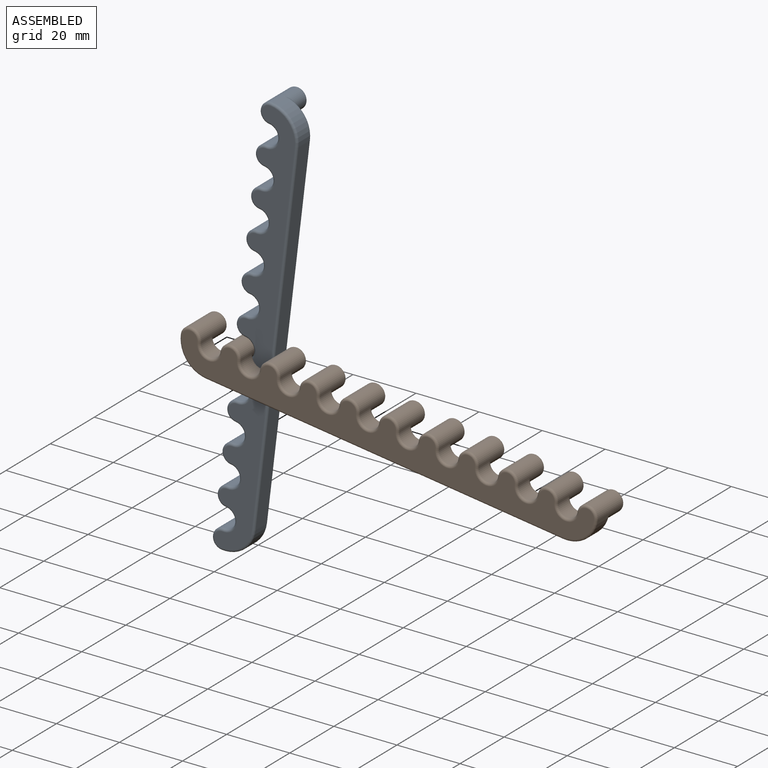
[diagram: assembled view]
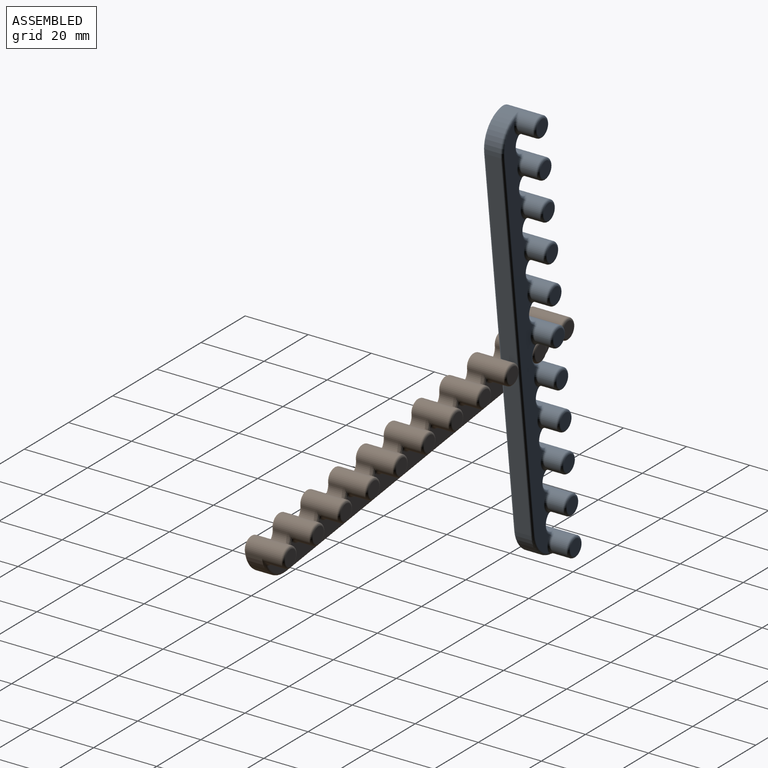
[diagram: assembled view, second angle]
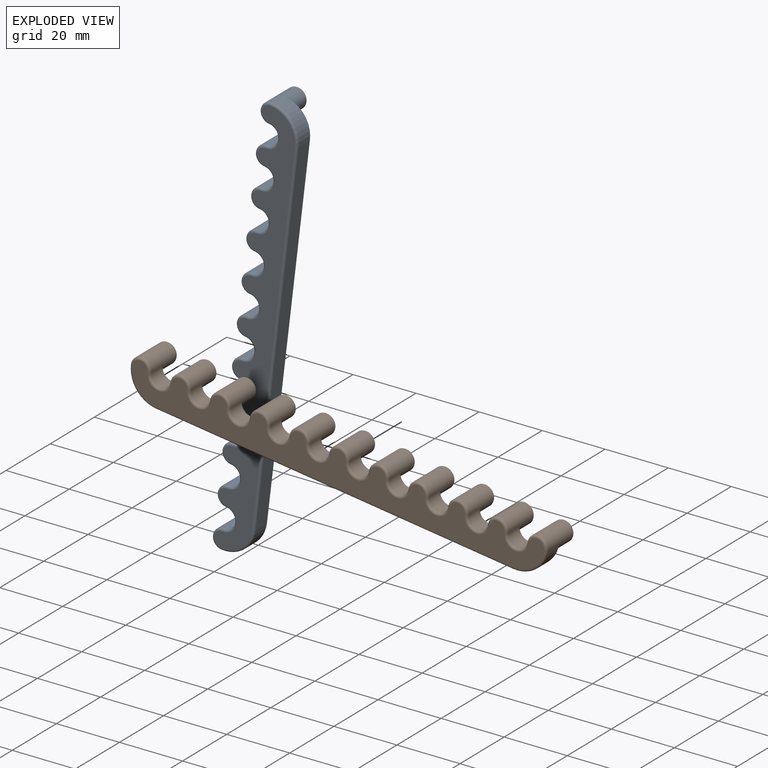
[diagram: exploded view]
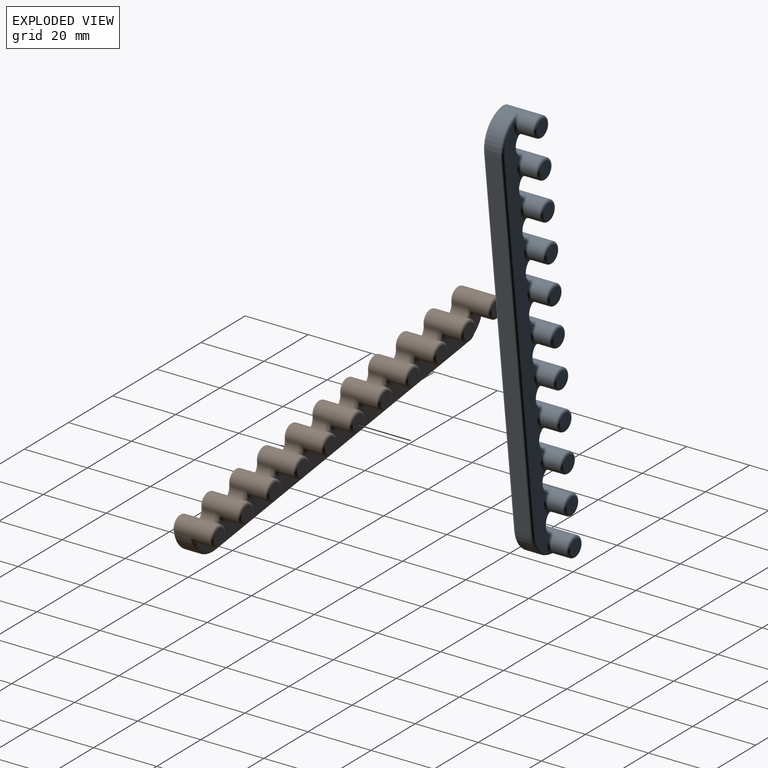
[diagram: exploded view, second angle]
ASSEMBLY  parts=2 mates=2
PART A: 118 faces, bbox 13.7x12.7x134.9 mm
  f0: cylinder r=3.17mm len=11.18mm, axis (0,1,0), area 161.8mm2, adj f1,f21,f52,f82,f84,f86,f110
  f1: cylinder r=3.17mm len=6.35mm, axis (0,1,0), area 48.1mm2, adj f0,f2,f54,f80
  f2: cylinder r=3.17mm len=11.18mm, axis (0,1,0), area 161.8mm2, adj f1,f3,f56,f74,f76,f78,f111
  f3: cylinder r=3.17mm len=6.35mm, axis (0,1,0), area 48.1mm2, adj f2,f4,f58,f72
  f4: cylinder r=3.17mm len=11.18mm, axis (0,1,0), area 161.8mm2, adj f3,f5,f60,f66,f68,f70,f112
  f5: cylinder r=3.17mm len=6.35mm, axis (0,1,0), area 48.1mm2, adj f4,f6,f59,f64
  f6: cylinder r=3.17mm len=11.18mm, axis (0,1,0), area 161.8mm2, adj f5,f7,f57,f61,f62,f63,f113
  f7: cylinder r=3.17mm len=6.35mm, axis (0,1,0), area 48.1mm2, adj f6,f8,f55,f65
  f8: cylinder r=3.17mm len=11.18mm, axis (0,1,0), area 161.8mm2, adj f7,f9,f53,f67,f69,f71,f114
  f9: cylinder r=3.17mm len=6.35mm, axis (0,1,0), area 48.1mm2, adj f8,f10,f51,f73
  f10: cylinder r=3.17mm len=11.18mm, axis (0,1,0), area 161.8mm2, adj f9,f11,f49,f75,f77,f79,f115
  f11: cylinder r=3.17mm len=6.35mm, axis (0,1,0), area 48.1mm2, adj f10,f12,f47,f81
  f12: cylinder r=3.17mm len=11.18mm, axis (0,1,0), area 161.8mm2, adj f11,f13,f45,f83,f85,f87,f116
  f13: cylinder r=3.17mm len=6.35mm, axis (0,1,0), area 48.1mm2, adj f12,f14,f43,f89
  f14: cylinder r=3.17mm len=11.18mm, axis (0,1,0), area 162.8mm2, adj f13,f24,f41,f91,f93,f95,f117
  f15: plane 114.3x4.83mm, normal (1,0,0), area 551.6mm2, adj f24,f25,f37,f99
  f16: cylinder r=3.17mm len=11.18mm, axis (0,1,0), area 162.8mm2, adj f17,f25,f40,f103,f105,f106,f107
  f17: cylinder r=3.17mm len=6.35mm, axis (0,1,0), area 48.1mm2, adj f16,f18,f42,f104
  f18: cylinder r=3.17mm len=11.18mm, axis (0,1,0), area 161.8mm2, adj f17,f19,f44,f98,f100,f102,f108
  f19: cylinder r=3.17mm len=6.35mm, axis (0,1,0), area 48.1mm2, adj f18,f20,f46,f96
  f20: cylinder r=3.17mm len=11.18mm, axis (0,1,0), area 161.8mm2, adj f19,f21,f48,f90,f92,f94,f109
  f21: cylinder r=3.17mm len=6.35mm, axis (0,1,0), area 48.1mm2, adj f0,f20,f50,f88
  f22: plane 131.83x11.18mm, normal (0,-1,0), area 979.4mm2, adj f37,f38,f39,f40,f41,f42,f43,f44
  f23: plane 130.3x6.44mm, normal (0,1,0), area 667.3mm2, adj f61,f64,f65,f68,f69,f72,f73,f76
  f24: cylinder r=9.53mm len=9.53mm, axis (0,-1,0), area 72.2mm2, adj f14,f15,f39,f97
  f25: cylinder r=9.53mm len=9.53mm, axis (0,-1,0), area 72.2mm2, adj f15,f16,f38,f101
  f26: plane 4.83x4.83mm, normal (0,1,0), area 18.3mm2, adj f117
  f27: plane 4.83x4.83mm, normal (0,1,0), area 18.3mm2, adj f116
  f28: plane 4.83x4.83mm, normal (0,1,0), area 18.3mm2, adj f115
  f29: plane 4.83x4.83mm, normal (0,1,0), area 18.3mm2, adj f114
  f30: plane 4.83x4.83mm, normal (0,1,0), area 18.3mm2, adj f113
  f31: plane 4.83x4.83mm, normal (0,1,0), area 18.3mm2, adj f112
  f32: plane 4.83x4.83mm, normal (0,1,0), area 18.3mm2, adj f111
  f33: plane 4.83x4.83mm, normal (0,1,0), area 18.3mm2, adj f110
  f34: plane 4.83x4.83mm, normal (0,1,0), area 18.3mm2, adj f109
  f35: plane 4.83x4.83mm, normal (0,1,0), area 18.3mm2, adj f108
  f36: plane 4.83x4.83mm, normal (0,1,0), area 18.3mm2, adj f107
  f37: cylinder r=0.76mm len=114.3mm, axis (0,0,-1), area 136.8mm2, adj f15,f22,f38,f39
  f38: torus R=8.76mm, axis (0,-1,0), area 17.4mm2, adj f22,f25,f37,f40
  f39: torus R=8.76mm, axis (0,-1,0), area 17.4mm2, adj f22,f24,f37,f41
  f40: torus R=2.41mm, axis (0,-1,0), area 10.9mm2, adj f16,f22,f38,f42
  f41: torus R=2.41mm, axis (0,-1,0), area 10.9mm2, adj f14,f22,f39,f43
  f42: torus R=3.94mm, axis (0,-1,0), area 13mm2, adj f17,f22,f40,f44
  f43: torus R=3.94mm, axis (0,-1,0), area 13mm2, adj f13,f22,f41,f45
  f44: torus R=2.41mm, axis (0,-1,0), area 10.9mm2, adj f18,f22,f42,f46
  f45: torus R=2.41mm, axis (0,-1,0), area 10.9mm2, adj f12,f22,f43,f47
  f46: torus R=3.94mm, axis (0,-1,0), area 13mm2, adj f19,f22,f44,f48
  f47: torus R=3.94mm, axis (0,-1,0), area 13mm2, adj f11,f22,f45,f49
  f48: torus R=2.41mm, axis (0,-1,0), area 10.9mm2, adj f20,f22,f46,f50
  f49: torus R=2.41mm, axis (0,-1,0), area 10.9mm2, adj f10,f22,f47,f51
  f50: torus R=3.94mm, axis (0,-1,0), area 13mm2, adj f21,f22,f48,f52
  f51: torus R=3.94mm, axis (0,-1,0), area 13mm2, adj f9,f22,f49,f53
  f52: torus R=2.41mm, axis (0,-1,0), area 10.9mm2, adj f0,f22,f50,f54
  f53: torus R=2.41mm, axis (0,-1,0), area 10.9mm2, adj f8,f22,f51,f55
  f54: torus R=3.94mm, axis (0,-1,0), area 13mm2, adj f1,f22,f52,f56
  f55: torus R=3.94mm, axis (0,-1,0), area 13mm2, adj f7,f22,f53,f57
  f56: torus R=2.41mm, axis (0,-1,0), area 10.9mm2, adj f2,f22,f54,f58
  f57: torus R=2.41mm, axis (0,-1,0), area 10.9mm2, adj f6,f22,f55,f59
  f58: torus R=3.94mm, axis (0,-1,0), area 13mm2, adj f3,f22,f56,f60
  f59: torus R=3.94mm, axis (0,-1,0), area 13mm2, adj f5,f22,f57,f60
  f60: torus R=2.41mm, axis (0,-1,0), area 10.9mm2, adj f4,f22,f58,f59
  f61: torus R=3.94mm, axis (0,-1,0), area 7.8mm2, adj f6,f23,f62,f63
  f62: bspline ~2.33x1.52mm, area 1.5mm2, adj f6,f61,f64
  f63: bspline ~2.49x1.52mm, area 1.5mm2, adj f6,f61,f65
  f64: torus R=3.94mm, axis (0,-1,0), area 9.7mm2, adj f5,f23,f62,f66
  f65: torus R=3.94mm, axis (0,-1,0), area 9.7mm2, adj f7,f23,f63,f67
  f66: bspline ~2.49x1.52mm, area 1.5mm2, adj f4,f64,f68
  f67: bspline ~2.33x1.52mm, area 1.5mm2, adj f8,f65,f69
  f68: torus R=3.94mm, axis (0,-1,0), area 7.8mm2, adj f4,f23,f66,f70
  f69: torus R=3.94mm, axis (0,-1,0), area 7.8mm2, adj f8,f23,f67,f71
  f70: bspline ~2.49x1.52mm, area 1.5mm2, adj f4,f68,f72
  f71: bspline ~2.33x1.52mm, area 1.5mm2, adj f8,f69,f73
  f72: torus R=3.94mm, axis (0,-1,0), area 9.7mm2, adj f3,f23,f70,f74
  f73: torus R=3.94mm, axis (0,-1,0), area 9.7mm2, adj f9,f23,f71,f75
  f74: bspline ~2.33x1.52mm, area 1.5mm2, adj f2,f72,f76
  f75: bspline ~2.33x1.52mm, area 1.5mm2, adj f10,f73,f77
  f76: torus R=3.94mm, axis (0,-1,0), area 7.8mm2, adj f2,f23,f74,f78
  f77: torus R=3.94mm, axis (0,-1,0), area 7.8mm2, adj f10,f23,f75,f79
  f78: bspline ~2.33x1.52mm, area 1.5mm2, adj f2,f76,f80
  f79: bspline ~2.49x1.52mm, area 1.5mm2, adj f10,f77,f81
  f80: torus R=3.94mm, axis (0,-1,0), area 9.7mm2, adj f1,f23,f78,f82
  f81: torus R=3.94mm, axis (0,-1,0), area 9.7mm2, adj f11,f23,f79,f83
  f82: bspline ~2.33x1.52mm, area 1.5mm2, adj f0,f80,f84
  f83: bspline ~2.33x1.52mm, area 1.5mm2, adj f12,f81,f85
  f84: torus R=3.94mm, axis (0,-1,0), area 7.8mm2, adj f0,f23,f82,f86
  f85: torus R=3.94mm, axis (0,-1,0), area 7.8mm2, adj f12,f23,f83,f87
  f86: bspline ~2.49x1.52mm, area 1.5mm2, adj f0,f84,f88
  f87: bspline ~2.49x1.52mm, area 1.5mm2, adj f12,f85,f89
  f88: torus R=3.94mm, axis (0,-1,0), area 9.7mm2, adj f21,f23,f86,f90
  f89: torus R=3.94mm, axis (0,-1,0), area 9.7mm2, adj f13,f23,f87,f91
  f90: bspline ~2.33x1.52mm, area 1.5mm2, adj f20,f88,f92
  f91: bspline ~2.33x1.52mm, area 1.5mm2, adj f14,f89,f93
  f92: torus R=3.94mm, axis (0,-1,0), area 7.8mm2, adj f20,f23,f90,f94
  f93: torus R=3.94mm, axis (0,-1,0), area 5.7mm2, adj f14,f23,f91,f95
  f94: bspline ~2.33x1.52mm, area 1.5mm2, adj f20,f92,f96
  f95: bspline ~3.57x1.84mm, area 2.3mm2, adj f14,f93,f97
  f96: torus R=3.94mm, axis (0,-1,0), area 9.7mm2, adj f19,f23,f94,f98
  f97: torus R=8.76mm, axis (0,-1,0), area 14.9mm2, adj f23,f24,f95,f99
  f98: bspline ~2.49x1.52mm, area 1.5mm2, adj f18,f96,f100
  f99: cylinder r=0.76mm len=114.3mm, axis (0,0,1), area 136.8mm2, adj f15,f23,f97,f101
  f100: torus R=3.94mm, axis (0,-1,0), area 7.8mm2, adj f18,f23,f98,f102
  f101: torus R=8.76mm, axis (0,-1,0), area 14.9mm2, adj f23,f25,f99,f103
  f102: bspline ~2.49x1.52mm, area 1.5mm2, adj f18,f100,f104
  f103: bspline ~3.84x2.23mm, area 2.3mm2, adj f16,f101,f105
  f104: torus R=3.94mm, axis (0,-1,0), area 9.7mm2, adj f17,f23,f102,f106
  f105: torus R=3.94mm, axis (0,-1,0), area 5.7mm2, adj f16,f23,f103,f106
  f106: bspline ~2.49x1.52mm, area 1.5mm2, adj f16,f104,f105
  f107: torus R=2.41mm, axis (0,-1,0), area 21.8mm2, adj f16,f36
  f108: torus R=2.41mm, axis (0,-1,0), area 21.8mm2, adj f18,f35
  f109: torus R=2.41mm, axis (0,-1,0), area 21.8mm2, adj f20,f34
  f110: torus R=2.41mm, axis (0,-1,0), area 21.8mm2, adj f0,f33
  f111: torus R=2.41mm, axis (0,-1,0), area 21.8mm2, adj f2,f32
  f112: torus R=2.41mm, axis (0,-1,0), area 21.8mm2, adj f4,f31
  f113: torus R=2.41mm, axis (0,-1,0), area 21.8mm2, adj f6,f30
  f114: torus R=2.41mm, axis (0,-1,0), area 21.8mm2, adj f8,f29
  f115: torus R=2.41mm, axis (0,-1,0), area 21.8mm2, adj f10,f28
  f116: torus R=2.41mm, axis (0,-1,0), area 21.8mm2, adj f12,f27
  f117: torus R=2.41mm, axis (0,-1,0), area 21.8mm2, adj f14,f26
PART B: same geometry as A
PLACE A rot(axis=(0,1,0),6.8deg) t=(-13.11,-7,-1.63)mm fixed
PLACE B rot(axis=(0,1,0),97.9deg) t=(-32.4,-13.35,52.13)mm
MATE cylindrical A.f5 <-> B.f12  axis (0,1,0) through (-15.38,-7.76,59.4)mm
MATE planar B.f23 <-> A.f22  axis (0,1,0) through (34.12,-13.35,46.46)mm
